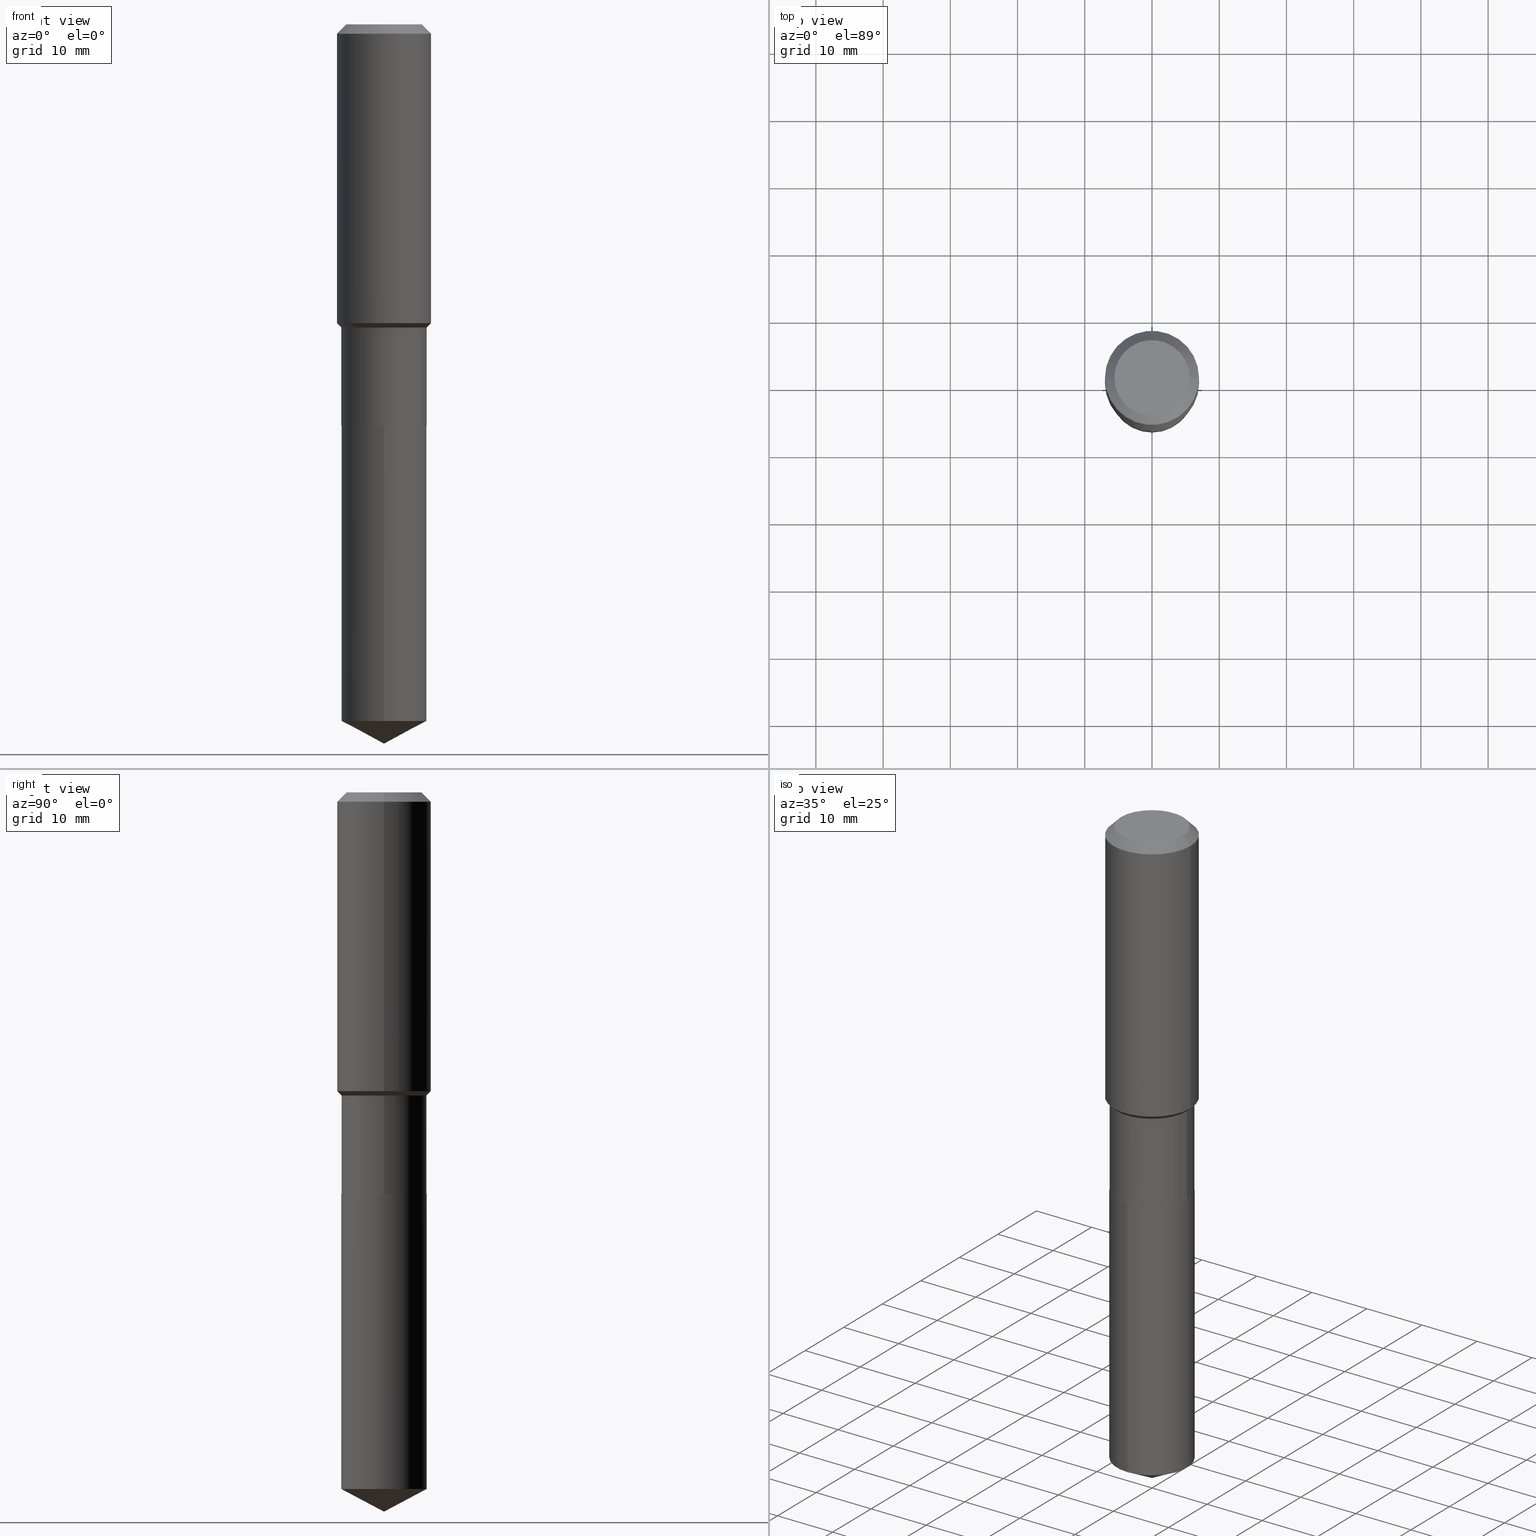
[diagram: canonical four-view strip — front | top / right | iso, engineering-drawing reading convention]
A machine part, canonical four-view strip (front | top / right | iso — engineering-drawing reading convention). The complete STEP part file that produces these views, byte-faithful:
ISO-10303-21;
HEADER;
FILE_DESCRIPTION (( 'STEP AP203' ),
    '1' );
FILE_NAME ('54728.STEP',
    '2024-04-24T15:38:43',
    ( '' ),
    ( '' ),
    'SwSTEP 2.0',
    'SolidWorks 2023',
    '' );
FILE_SCHEMA (( 'CONFIG_CONTROL_DESIGN' ));
ENDSEC;

DATA;
#1 = LINE ( 'NONE', #418, #408 ) ;
#2 = CIRCLE ( 'NONE', #460, 0.2494999999999999996 ) ;
#3 = DIRECTION ( 'NONE',  ( 1.000000000000000000, -6.982962677686269077E-15, 0.000000000000000000 ) ) ;
#4 = DIRECTION ( 'NONE',  ( 1.000000000000000000, -6.982962677686266711E-15, 4.876132675269083677E-29 ) ) ;
#5 = CYLINDRICAL_SURFACE ( 'NONE', #248, 0.2756000000000001227 ) ;
#6 = FACE_OUTER_BOUND ( 'NONE', #391, .T. ) ;
#7 = DIRECTION ( 'NONE',  ( -2.445468806185136597E-29, 3.491481338843145583E-15, 1.000000000000000000 ) ) ;
#8 = DIRECTION ( 'NONE',  ( -6.982962677686265922E-15, -1.000000000000000000, 4.370956789862821150E-15 ) ) ;
#9 = EDGE_LOOP ( 'NONE', ( #283, #389 ) ) ;
#10 = APPROVAL_PERSON_ORGANIZATION ( #402, #50, #173 ) ;
#11 = LINE ( 'NONE', #309, #295 ) ;
#12 = EDGE_CURVE ( 'NONE', #400, #174, #275, .T. ) ;
#13 = DIRECTION ( 'NONE',  ( -2.445468806185136877E-29, 3.491481338843145188E-15, 1.000000000000000000 ) ) ;
#14 = PERSON_AND_ORGANIZATION ( #481, #476 ) ;
#15 = DIMENSIONAL_EXPONENTS ( 1.000000000000000000, 0.000000000000000000, 0.000000000000000000, 0.000000000000000000, 0.000000000000000000, 0.000000000000000000, 0.000000000000000000 ) ;
#16 = APPROVAL_ROLE ( '' ) ;
#17 = AXIS2_PLACEMENT_3D ( 'NONE', #364, #19, #256 ) ;
#18 = EDGE_LOOP ( 'NONE', ( #409, #331, #230, #97 ) ) ;
#19 = DIRECTION ( 'NONE',  ( -2.445468806185136597E-29, 3.491481338843145583E-15, 1.000000000000000000 ) ) ;
#20 = ORIENTED_EDGE ( 'NONE', *, *, #426, .F. ) ;
#21 = DIRECTION ( 'NONE',  ( -2.445468806185136597E-29, 3.491481338843145583E-15, 1.000000000000000000 ) ) ;
#22 = DIRECTION ( 'NONE',  ( -2.445468806185136597E-29, 3.491481338843145583E-15, 1.000000000000000000 ) ) ;
#23 = EDGE_CURVE ( 'NONE', #155, #361, #398, .T. ) ;
#24 = ORIENTED_EDGE ( 'NONE', *, *, #378, .T. ) ;
#25 = DIRECTION ( 'NONE',  ( 1.000000000000000000, -6.982962677686269077E-15, 0.000000000000000000 ) ) ;
#26 = CIRCLE ( 'NONE', #449, 0.2500000000000000000 ) ;
#27 = ORIENTED_EDGE ( 'NONE', *, *, #23, .T. ) ;
#28 = PLANE ( 'NONE',  #196 ) ;
#29 = VERTEX_POINT ( 'NONE', #35 ) ;
#30 = EDGE_CURVE ( 'NONE', #215, #155, #235, .T. ) ;
#31 = CYLINDRICAL_SURFACE ( 'NONE', #160, 0.2500000000000000000 ) ;
#32 = DIRECTION ( 'NONE',  ( -6.982962677686265922E-15, -1.000000000000000000, 4.370956789862821150E-15 ) ) ;
#33 = PERSON_AND_ORGANIZATION_ROLE ( 'creator' ) ;
#34 = LOCAL_TIME ( 11, 38, 43.00000000000000000, #263 ) ;
#35 = CARTESIAN_POINT ( 'NONE',  ( -0.2494999999999999996, -6.430924385921369008E-15, -2.350400000000000045 ) ) ;
#36 = CC_DESIGN_DATE_AND_TIME_ASSIGNMENT ( #438, #100, ( #277 ) ) ;
#37 = CARTESIAN_POINT ( 'NONE',  ( 0.000000000000000000, 0.000000000000000000, 0.000000000000000000 ) ) ;
#38 = ADVANCED_FACE ( 'NONE', ( #488 ), #297, .T. ) ;
#39 = ORIENTED_EDGE ( 'NONE', *, *, #323, .T. ) ;
#40 = VERTEX_POINT ( 'NONE', #73 ) ;
#41 = CIRCLE ( 'NONE', #175, 0.2756000000000002337 ) ;
#42 = CARTESIAN_POINT ( 'NONE',  ( -0.2499999999999999167, -5.425347144164564958E-15, -1.775400000000000311 ) ) ;
#43 = PERSON_AND_ORGANIZATION ( #481, #476 ) ;
#44 = CARTESIAN_POINT ( 'NONE',  ( 5.747829882057545692E-29, -8.206377738816930564E-15, -2.350400000000000045 ) ) ;
#45 = CARTESIAN_POINT ( 'NONE',  ( 0.2494999999999999996, -9.948626926899652657E-15, -2.350400000000000045 ) ) ;
#46 = COORDINATED_UNIVERSAL_TIME_OFFSET ( 5, 0, .BEHIND. ) ;
#47 = FACE_OUTER_BOUND ( 'NONE', #61, .T. ) ;
#48 = ORIENTED_EDGE ( 'NONE', *, *, #393, .T. ) ;
#49 = DATE_TIME_ROLE ( 'creation_date' ) ;
#50 = APPROVAL ( #63, 'UNSPECIFIED' ) ;
#51 = CARTESIAN_POINT ( 'NONE',  ( -0.2494999999999999996, -6.433573613095479421E-15, -2.350400000000000045 ) ) ;
#52 = AXIS2_PLACEMENT_3D ( 'NONE', #419, #280, #351 ) ;
#53 = DIRECTION ( 'NONE',  ( -6.982962677686265922E-15, -1.000000000000000000, 3.278217592397115862E-15 ) ) ;
#54 = ADVANCED_FACE ( 'NONE', ( #110 ), #84, .T. ) ;
#55 = ADVANCED_FACE ( 'NONE', ( #111 ), #343, .T. ) ;
#56 = VERTEX_POINT ( 'NONE', #227 ) ;
#57 = CIRCLE ( 'NONE', #246, 0.2204800000000000093 ) ;
#58 = LINE ( 'NONE', #480, #259 ) ;
#59 = PERSON_AND_ORGANIZATION ( #481, #476 ) ;
#60 = AXIS2_PLACEMENT_3D ( 'NONE', #357, #122, #8 ) ;
#61 = EDGE_LOOP ( 'NONE', ( #209, #405, #345, #479 ) ) ;
#62 = CYLINDRICAL_SURFACE ( 'NONE', #87, 0.2499999999999999722 ) ;
#63 = APPROVAL_STATUS ( 'not_yet_approved' ) ;
#64 = EDGE_LOOP ( 'NONE', ( #39, #48 ) ) ;
#65 = DIRECTION ( 'NONE',  ( 1.000000000000000000, -6.982962677686269077E-15, 0.000000000000000000 ) ) ;
#66 = ORIENTED_EDGE ( 'NONE', *, *, #347, .T. ) ;
#67 = DIRECTION ( 'NONE',  ( -1.000000000000000000, 6.982962677686269077E-15, 0.000000000000000000 ) ) ;
#68 = COORDINATED_UNIVERSAL_TIME_OFFSET ( 5, 0, .BEHIND. ) ;
#69 = VECTOR ( 'NONE', #489, 39.37007874015748143 ) ;
#70 = ORIENTED_EDGE ( 'NONE', *, *, #339, .T. ) ;
#71 = DIRECTION ( 'NONE',  ( -2.445468806185136597E-29, 3.491481338843145583E-15, 1.000000000000000000 ) ) ;
#72 = CALENDAR_DATE ( 2024, 24, 4 ) ;
#73 = CARTESIAN_POINT ( 'NONE',  ( 0.2494999999999999996, -9.948626926899652657E-15, -2.350400000000000045 ) ) ;
#74 = APPROVAL_ROLE ( '' ) ;
#75 = CARTESIAN_POINT ( 'NONE',  ( 1.030189478474835746E-28, -1.470805418710330559E-14, -4.212600000000000122 ) ) ;
#76 = COORDINATED_UNIVERSAL_TIME_OFFSET ( 5, 0, .BEHIND. ) ;
#77 = AXIS2_PLACEMENT_3D ( 'NONE', #262, #453, #454 ) ;
#78 = CONICAL_SURFACE ( 'NONE', #128, 74.04434902938325536, 1.082104136236484937 ) ;
#79 = ORIENTED_EDGE ( 'NONE', *, *, #451, .F. ) ;
#80 = EDGE_CURVE ( 'NONE', #144, #56, #57, .T. ) ;
#81 = DIRECTION ( 'NONE',  ( -6.982962677686266711E-15, -1.000000000000000000, 3.541896320645574279E-15 ) ) ;
#82 = FACE_OUTER_BOUND ( 'NONE', #9, .T. ) ;
#83 = DIRECTION ( 'NONE',  ( -0.7071067811868130271, 7.493145998871311837E-15, 0.7071067811862817853 ) ) ;
#84 = CONICAL_SURFACE ( 'NONE', #485, 0.2756000000000000116, 0.7853981633974452814 ) ;
#85 = ADVANCED_FACE ( 'NONE', ( #82 ), #113, .F. ) ;
#86 = LINE ( 'NONE', #420, #355 ) ;
#87 = AXIS2_PLACEMENT_3D ( 'NONE', #404, #96, #366 ) ;
#88 = PRODUCT_DEFINITION_FORMATION_WITH_SPECIFIED_SOURCE ( 'ANY', '', #229, .NOT_KNOWN. ) ;
#89 = DIRECTION ( 'NONE',  ( -2.445468806185136877E-29, 3.491481338843145188E-15, 1.000000000000000000 ) ) ;
#90 = CARTESIAN_POINT ( 'NONE',  ( 5.747829882057545692E-29, -8.206377738816930564E-15, -2.350400000000000045 ) ) ;
#91 = ORIENTED_EDGE ( 'NONE', *, *, #299, .T. ) ;
#92 = LINE ( 'NONE', #51, #399 ) ;
#93 = VECTOR ( 'NONE', #467, 39.37007874015748854 ) ;
#94 = CARTESIAN_POINT ( 'NONE',  ( -1.745740669421508894E-15, -0.2500000000000082157, -2.350399999999999157 ) ) ;
#95 = APPROVAL_DATE_TIME ( #466, #435 ) ;
#96 = DIRECTION ( 'NONE',  ( -2.445468806185136597E-29, 3.491481338843145583E-15, 1.000000000000000000 ) ) ;
#97 = ORIENTED_EDGE ( 'NONE', *, *, #204, .F. ) ;
#98 = AXIS2_PLACEMENT_3D ( 'NONE', #250, #260, #67 ) ;
#99 = CARTESIAN_POINT ( 'NONE',  ( 5.747829882057545692E-29, -8.206377738816930564E-15, -2.350400000000000045 ) ) ;
#100 = DATE_TIME_ROLE ( 'classification_date' ) ;
#101 = ORIENTED_EDGE ( 'NONE', *, *, #166, .F. ) ;
#102 = DIRECTION ( 'NONE',  ( -2.445495345107905207E-29, 3.491443333595239081E-15, 1.000000000000000000 ) ) ;
#103 = ORIENTED_EDGE ( 'NONE', *, *, #484, .T. ) ;
#104 = DIRECTION ( 'NONE',  ( -2.445468806185136597E-29, 3.491481338843145583E-15, 1.000000000000000000 ) ) ;
#105 = ORIENTED_EDGE ( 'NONE', *, *, #428, .T. ) ;
#106 = DIRECTION ( 'NONE',  ( -6.165590087286828929E-15, -0.8829475928589255451, 0.4694715627858933038 ) ) ;
#107 = EDGE_CURVE ( 'NONE', #144, #174, #306, .T. ) ;
#108 = VECTOR ( 'NONE', #89, 39.37007874015748143 ) ;
#109 = LOCAL_TIME ( 11, 38, 43.00000000000000000, #68 ) ;
#110 = FACE_OUTER_BOUND ( 'NONE', #365, .T. ) ;
#111 = FACE_OUTER_BOUND ( 'NONE', #329, .T. ) ;
#112 = DIRECTION ( 'NONE',  ( 0.000000000000000000, 0.000000000000000000, 1.000000000000000000 ) ) ;
#113 = PLANE ( 'NONE',  #164 ) ;
#114 = EDGE_CURVE ( 'NONE', #159, #320, #1, .T. ) ;
#115 = APPROVAL_DATE_TIME ( #193, #50 ) ;
#116 = AXIS2_PLACEMENT_3D ( 'NONE', #138, #410, #483 ) ;
#117 = LENGTH_MEASURE_WITH_UNIT ( LENGTH_MEASURE( 0.02539999999999999897 ), #264 );
#118 = APPROVAL_PERSON_ORGANIZATION ( #348, #243, #74 ) ;
#119 = CARTESIAN_POINT ( 'NONE',  ( 1.776356839400350256E-15, 0.2499999999999918121, -2.350400000000000933 ) ) ;
#120 =( CONVERSION_BASED_UNIT ( 'INCH', #117 ) LENGTH_UNIT ( ) NAMED_UNIT ( #15 ) );
#121 = FACE_OUTER_BOUND ( 'NONE', #137, .T. ) ;
#122 = DIRECTION ( 'NONE',  ( -2.445495345107905207E-29, 3.491443333595239081E-15, 1.000000000000000000 ) ) ;
#123 = PERSON_AND_ORGANIZATION_ROLE ( 'design_owner' ) ;
#124 = APPLICATION_PROTOCOL_DEFINITION ( 'international standard', 'config_control_design', 1994, #442 ) ;
#125 = CARTESIAN_POINT ( 'NONE',  ( 4.341685318501092485E-29, -6.198775968982121785E-15, -1.775400000000000311 ) ) ;
#126 = DIRECTION ( 'NONE',  ( -2.445468806185136597E-29, 3.491481338843145583E-15, 1.000000000000000000 ) ) ;
#127 = AXIS2_PLACEMENT_3D ( 'NONE', #429, #307, #465 ) ;
#128 = AXIS2_PLACEMENT_3D ( 'NONE', #130, #279, #458 ) ;
#129 = LINE ( 'NONE', #423, #431 ) ;
#130 = CARTESIAN_POINT ( 'NONE',  ( -8.597751298186933089E-28, 1.227502554458045006E-13, 35.15747874015747954 ) ) ;
#131 = EDGE_CURVE ( 'NONE', #40, #29, #368, .T. ) ;
#132 = PERSON_AND_ORGANIZATION ( #481, #476 ) ;
#133 = AXIS2_PLACEMENT_3D ( 'NONE', #300, #342, #81 ) ;
#134 = CIRCLE ( 'NONE', #77, 0.2500000000000000000 ) ;
#135 = CIRCLE ( 'NONE', #52, 0.2499999999999999167 ) ;
#136 = EDGE_CURVE ( 'NONE', #217, #278, #134, .T. ) ;
#137 = EDGE_LOOP ( 'NONE', ( #20, #27, #403, #284 ) ) ;
#138 = CARTESIAN_POINT ( 'NONE',  ( 1.347942405969256063E-30, -1.924504513970354330E-16, -0.05512000000000035621 ) ) ;
#139 = MANIFOLD_SOLID_BREP ( 'Body-Move/Copy2[1]', #205 ) ;
#140 = VERTEX_POINT ( 'NONE', #119 ) ;
#141 = FACE_OUTER_BOUND ( 'NONE', #171, .T. ) ;
#142 = ORIENTED_EDGE ( 'NONE', *, *, #426, .T. ) ;
#143 = DIRECTION ( 'NONE',  ( -6.982962677686265922E-15, -1.000000000000000000, 3.278217592397115862E-15 ) ) ;
#144 = VERTEX_POINT ( 'NONE', #268 ) ;
#145 = DIRECTION ( 'NONE',  ( -1.000000000000000000, 6.982962677686265922E-15, -4.876176775795935793E-29 ) ) ;
#146 = ADVANCED_FACE ( 'NONE', ( #121 ), #271, .T. ) ;
#147 = EDGE_LOOP ( 'NONE', ( #79, #91, #233, #477 ) ) ;
#148 = CARTESIAN_POINT ( 'NONE',  ( 0.2500000000000000000, -9.950372667569074950E-15, -2.349900000000000322 ) ) ;
#149 = DIRECTION ( 'NONE',  ( 1.000000000000000000, -6.982962677686267499E-15, 4.876176775795935793E-29 ) ) ;
#150 = CARTESIAN_POINT ( 'NONE',  ( 5.747829882057544571E-29, -8.206377738816928987E-15, -2.350400000000000045 ) ) ;
#151 = CARTESIAN_POINT ( 'NONE',  ( 1.347942405969256063E-30, -1.924504513970354330E-16, -0.05512000000000035621 ) ) ;
#152 = AXIS2_PLACEMENT_3D ( 'NONE', #478, #21, #65 ) ;
#153 = ORIENTED_EDGE ( 'NONE', *, *, #12, .T. ) ;
#154 = MECHANICAL_CONTEXT ( 'NONE', #442, 'mechanical' ) ;
#155 = VERTEX_POINT ( 'NONE', #349 ) ;
#156 = CC_DESIGN_PERSON_AND_ORGANIZATION_ASSIGNMENT ( #375, #33, ( #197 ) ) ;
#157 = CARTESIAN_POINT ( 'NONE',  ( 0.000000000000000000, 0.000000000000000000, 0.000000000000000000 ) ) ;
#158 = CARTESIAN_POINT ( 'NONE',  ( 0.2499999999999999167, -7.944516638403687674E-15, -1.775400000000000311 ) ) ;
#159 = VERTEX_POINT ( 'NONE', #158 ) ;
#160 = AXIS2_PLACEMENT_3D ( 'NONE', #362, #474, #184 ) ;
#161 = APPLICATION_CONTEXT ( 'configuration controlled 3d designs of mechanical parts and assemblies' ) ;
#162 = ADVANCED_FACE ( 'NONE', ( #6 ), #311, .T. ) ;
#163 = ORIENTED_EDGE ( 'NONE', *, *, #80, .F. ) ;
#164 = AXIS2_PLACEMENT_3D ( 'NONE', #374, #265, #236 ) ;
#165 = UNCERTAINTY_MEASURE_WITH_UNIT (LENGTH_MEASURE( 1.000000000000000082E-05 ), #120, 'distance_accuracy_value', 'NONE');
#166 = EDGE_CURVE ( 'NONE', #278, #159, #86, .T. ) ;
#167 = CARTESIAN_POINT ( 'NONE',  ( 0.000000000000000000, 0.000000000000000000, 0.000000000000000000 ) ) ;
#168 = EDGE_LOOP ( 'NONE', ( #183, #473, #447 ) ) ;
#169 = FACE_OUTER_BOUND ( 'NONE', #147, .T. ) ;
#170 = ADVANCED_FACE ( 'NONE', ( #397 ), #28, .F. ) ;
#171 = EDGE_LOOP ( 'NONE', ( #288, #220, #482, #396 ) ) ;
#172 = CARTESIAN_POINT ( 'NONE',  ( 5.747829882057545692E-29, -8.206377738816930564E-15, -2.350400000000000045 ) ) ;
#173 = APPROVAL_ROLE ( '' ) ;
#174 = VERTEX_POINT ( 'NONE', #370 ) ;
#175 = AXIS2_PLACEMENT_3D ( 'NONE', #445, #22, #231 ) ;
#176 = FACE_OUTER_BOUND ( 'NONE', #293, .T. ) ;
#177 = CC_DESIGN_APPROVAL ( #243, ( #197 ) ) ;
#178 = EDGE_CURVE ( 'NONE', #340, #471, #181, .T. ) ;
#179 = EDGE_CURVE ( 'NONE', #215, #361, #58, .T. ) ;
#180 = ORIENTED_EDGE ( 'NONE', *, *, #371, .F. ) ;
#181 = LINE ( 'NONE', #245, #470 ) ;
#182 = PERSON_AND_ORGANIZATION ( #481, #476 ) ;
#183 = ORIENTED_EDGE ( 'NONE', *, *, #30, .F. ) ;
#184 = DIRECTION ( 'NONE',  ( -6.982962677686265922E-15, -1.000000000000000000, 3.278217592397115862E-15 ) ) ;
#185 = EDGE_LOOP ( 'NONE', ( #66, #70, #411, #101 ) ) ;
#186 = AXIS2_PLACEMENT_3D ( 'NONE', #287, #104, #321 ) ;
#187 = CIRCLE ( 'NONE', #385, 0.2500000000000000000 ) ;
#188 = CALENDAR_DATE ( 2024, 24, 4 ) ;
#189 = CC_DESIGN_APPROVAL ( #50, ( #277 ) ) ;
#190 = DIRECTION ( 'NONE',  ( -2.445468806185136597E-29, 3.491481338843145583E-15, 1.000000000000000000 ) ) ;
#191 = DIRECTION ( 'NONE',  ( 1.000000000000000000, 0.000000000000000000, 0.000000000000000000 ) ) ;
#192 = DIRECTION ( 'NONE',  ( 2.445468806185136597E-29, -3.491481338843145583E-15, -1.000000000000000000 ) ) ;
#193 = DATE_AND_TIME ( #341, #34 ) ;
#194 = ADVANCED_FACE ( 'NONE', ( #176 ), #422, .T. ) ;
#195 = DIRECTION ( 'NONE',  ( -2.445495345107905207E-29, 3.491443333595239081E-15, 1.000000000000000000 ) ) ;
#196 = AXIS2_PLACEMENT_3D ( 'NONE', #332, #448, #145 ) ;
#197 = PRODUCT_DEFINITION ( 'UNKNOWN', '', #88, #282 ) ;
#198 = CARTESIAN_POINT ( 'NONE',  ( 9.976758078697957252E-29, -1.424403517699194114E-14, -4.079672642084631207 ) ) ;
#199 = DIRECTION ( 'NONE',  ( -2.445495345107904926E-29, 3.491443333595239081E-15, 1.000000000000000000 ) ) ;
#200 = DIRECTION ( 'NONE',  ( -2.445495345107905207E-29, 3.491443333595239081E-15, 1.000000000000000000 ) ) ;
#201 = DIRECTION ( 'NONE',  ( 1.000000000000000000, -6.982962677686266711E-15, 0.000000000000000000 ) ) ;
#202 = CALENDAR_DATE ( 2024, 24, 4 ) ;
#203 = COORDINATED_UNIVERSAL_TIME_OFFSET ( 5, 0, .BEHIND. ) ;
#204 = EDGE_CURVE ( 'NONE', #174, #400, #247, .T. ) ;
#205 = CLOSED_SHELL ( 'NONE', ( #269, #55, #444, #146, #254 ) ) ;
#206 = AXIS2_PLACEMENT_3D ( 'NONE', #472, #71, #218 ) ;
#207 = LINE ( 'NONE', #242, #296 ) ;
#208 = CARTESIAN_POINT ( 'NONE',  ( 0.2756000000000000116, -2.116954965367370658E-15, -0.05512000000000035621 ) ) ;
#209 = ORIENTED_EDGE ( 'NONE', *, *, #433, .T. ) ;
#210 = ADVANCED_FACE ( 'NONE', ( #169 ), #221, .T. ) ;
#211 = CC_DESIGN_DATE_AND_TIME_ASSIGNMENT ( #352, #49, ( #197 ) ) ;
#212 = AXIS2_PLACEMENT_3D ( 'NONE', #222, #441, #25 ) ;
#213 = ORIENTED_EDGE ( 'NONE', *, *, #80, .T. ) ;
#214 = DIRECTION ( 'NONE',  ( 1.000000000000000000, -6.982962677686269077E-15, 0.000000000000000000 ) ) ;
#215 = VERTEX_POINT ( 'NONE', #289 ) ;
#216 = PLANE ( 'NONE',  #475 ) ;
#217 = VERTEX_POINT ( 'NONE', #401 ) ;
#218 = DIRECTION ( 'NONE',  ( 1.000000000000000000, -6.982962677686267499E-15, 0.000000000000000000 ) ) ;
#219 = ADVANCED_FACE ( 'NONE', ( #253 ), #330, .T. ) ;
#220 = ORIENTED_EDGE ( 'NONE', *, *, #451, .T. ) ;
#221 = CONICAL_SURFACE ( 'NONE', #152, 0.2494999999999999996, 0.7853981633978239785 ) ;
#222 = CARTESIAN_POINT ( 'NONE',  ( 5.747829882057544571E-29, -8.206377738816928987E-15, -2.350400000000000045 ) ) ;
#223 = CIRCLE ( 'NONE', #432, 0.2499999999999999167 ) ;
#224 = ADVANCED_BREP_SHAPE_REPRESENTATION ( '54728', ( #139, #468, #386 ), #267 ) ;
#225 = ORIENTED_EDGE ( 'NONE', *, *, #114, .T. ) ;
#226 = DIRECTION ( 'NONE',  ( 2.445495345107904926E-29, -3.491443333595239081E-15, -1.000000000000000000 ) ) ;
#227 = CARTESIAN_POINT ( 'NONE',  ( 0.2204800000000000093, -1.797903149065768707E-15, 3.860086710924123164E-18 ) ) ;
#228 = DATE_AND_TIME ( #188, #394 ) ;
#229 = PRODUCT ( '54728', '54728', '', ( #154 ) ) ;
#230 = ORIENTED_EDGE ( 'NONE', *, *, #446, .T. ) ;
#231 = DIRECTION ( 'NONE',  ( 1.000000000000000000, -6.982962677686267499E-15, 0.000000000000000000 ) ) ;
#232 =( NAMED_UNIT ( * ) SI_UNIT ( $, .STERADIAN. ) SOLID_ANGLE_UNIT ( ) );
#233 = ORIENTED_EDGE ( 'NONE', *, *, #382, .T. ) ;
#234 = CC_DESIGN_PERSON_AND_ORGANIZATION_ASSIGNMENT ( #59, #407, ( #277 ) ) ;
#235 = LINE ( 'NONE', #75, #367 ) ;
#236 = DIRECTION ( 'NONE',  ( 1.000000000000000000, -6.982962677686265922E-15, 4.876176775795935793E-29 ) ) ;
#237 = DIRECTION ( 'NONE',  ( -2.445468806185136597E-29, 3.491481338843145583E-15, 1.000000000000000000 ) ) ;
#238 = DIRECTION ( 'NONE',  ( 1.000000000000000000, -6.982962677686269077E-15, 0.000000000000000000 ) ) ;
#239 = CARTESIAN_POINT ( 'NONE',  ( -0.2756000000000002337, -4.151138266952898691E-15, -1.749800000000000244 ) ) ;
#240 = EDGE_CURVE ( 'NONE', #320, #471, #377, .T. ) ;
#241 = CARTESIAN_POINT ( 'NONE',  ( 5.746607147654452891E-29, -8.204631998147508272E-15, -2.349900000000000322 ) ) ;
#242 = CARTESIAN_POINT ( 'NONE',  ( -1.745740669421508894E-15, -0.2500000000000082157, -2.350399999999999157 ) ) ;
#243 = APPROVAL ( #308, 'UNSPECIFIED' ) ;
#244 = ORIENTED_EDGE ( 'NONE', *, *, #446, .F. ) ;
#245 = CARTESIAN_POINT ( 'NONE',  ( -0.2499999999999999167, -4.422419129581871321E-15, -1.775400000000000311 ) ) ;
#246 = AXIS2_PLACEMENT_3D ( 'NONE', #261, #337, #4 ) ;
#247 = CIRCLE ( 'NONE', #116, 0.2756000000000000116 ) ;
#248 = AXIS2_PLACEMENT_3D ( 'NONE', #157, #126, #421 ) ;
#249 = ORIENTED_EDGE ( 'NONE', *, *, #166, .T. ) ;
#250 = CARTESIAN_POINT ( 'NONE',  ( 1.347942405969256063E-30, -1.924504513970354330E-16, -0.05512000000000035621 ) ) ;
#251 = PERSON_AND_ORGANIZATION_ROLE ( 'design_supplier' ) ;
#252 = ORIENTED_EDGE ( 'NONE', *, *, #484, .F. ) ;
#253 = FACE_OUTER_BOUND ( 'NONE', #383, .T. ) ;
#254 = ADVANCED_FACE ( 'NONE', ( #406 ), #216, .F. ) ;
#255 = ORIENTED_EDGE ( 'NONE', *, *, #12, .F. ) ;
#256 = DIRECTION ( 'NONE',  ( 1.000000000000000000, -6.982962677686266711E-15, 4.876132675269083677E-29 ) ) ;
#257 = SECURITY_CLASSIFICATION_LEVEL ( 'unclassified' ) ;
#258 = EDGE_LOOP ( 'NONE', ( #213, #324 ) ) ;
#259 = VECTOR ( 'NONE', #106, 39.37007874015748143 ) ;
#260 = DIRECTION ( 'NONE',  ( 2.445468806185136597E-29, -3.491481338843145583E-15, -1.000000000000000000 ) ) ;
#261 = CARTESIAN_POINT ( 'NONE',  ( -9.439721640706190018E-47, 1.347742071746724849E-32, 3.860086710912454339E-18 ) ) ;
#262 = CARTESIAN_POINT ( 'NONE',  ( 5.746607147654452891E-29, -8.204631998147508272E-15, -2.349900000000000322 ) ) ;
#263 = COORDINATED_UNIVERSAL_TIME_OFFSET ( 5, 0, .BEHIND. ) ;
#264 =( LENGTH_UNIT ( ) NAMED_UNIT ( * ) SI_UNIT ( $, .METRE. ) );
#265 = DIRECTION ( 'NONE',  ( -2.438088387897960049E-29, 3.491481338843145188E-15, 1.000000000000000000 ) ) ;
#266 = CIRCLE ( 'NONE', #17, 0.2204800000000000093 ) ;
#267 =( GEOMETRIC_REPRESENTATION_CONTEXT ( 3 ) GLOBAL_UNCERTAINTY_ASSIGNED_CONTEXT ( ( #165 ) ) GLOBAL_UNIT_ASSIGNED_CONTEXT ( ( #120, #270, #232 ) ) REPRESENTATION_CONTEXT ( 'NONE', 'WORKASPACE' ) );
#268 = CARTESIAN_POINT ( 'NONE',  ( -0.2204800000000000093, 1.635828836874783961E-15, 3.860086710901350968E-18 ) ) ;
#269 = ADVANCED_FACE ( 'NONE', ( #373 ), #31, .T. ) ;
#270 =( NAMED_UNIT ( * ) PLANE_ANGLE_UNIT ( ) SI_UNIT ( $, .RADIAN. ) );
#271 = CYLINDRICAL_SURFACE ( 'NONE', #326, 0.2500000000000000000 ) ;
#272 = LINE ( 'NONE', #45, #93 ) ;
#273 = DIRECTION ( 'NONE',  ( -2.445468806185136597E-29, 3.491481338843145583E-15, 1.000000000000000000 ) ) ;
#274 = CARTESIAN_POINT ( 'NONE',  ( -1.745740669421466492E-15, -0.2500000000000141553, -4.079672642084629430 ) ) ;
#275 = CIRCLE ( 'NONE', #392, 0.2756000000000000116 ) ;
#276 = CIRCLE ( 'NONE', #60, 0.2500000000000000000 ) ;
#277 = SECURITY_CLASSIFICATION ( '', '', #257 ) ;
#278 = VERTEX_POINT ( 'NONE', #148 ) ;
#279 = DIRECTION ( 'NONE',  ( -2.445495345107905207E-29, 3.491443333595239081E-15, 1.000000000000000000 ) ) ;
#280 = DIRECTION ( 'NONE',  ( -2.445468806185136597E-29, 3.491481338843145583E-15, 1.000000000000000000 ) ) ;
#281 = CONICAL_SURFACE ( 'NONE', #212, 0.2494999999999999996, 0.7853981633978239785 ) ;
#282 = DESIGN_CONTEXT ( 'detailed design', #161, 'design' ) ;
#283 = ORIENTED_EDGE ( 'NONE', *, *, #131, .F. ) ;
#284 = ORIENTED_EDGE ( 'NONE', *, *, #393, .F. ) ;
#285 = CARTESIAN_POINT ( 'NONE',  ( 0.2756000000000002337, -8.033898560678073390E-15, -1.749800000000000244 ) ) ;
#286 = ORIENTED_EDGE ( 'NONE', *, *, #179, .F. ) ;
#287 = CARTESIAN_POINT ( 'NONE',  ( 0.000000000000000000, 0.000000000000000000, 0.000000000000000000 ) ) ;
#288 = ORIENTED_EDGE ( 'NONE', *, *, #131, .T. ) ;
#289 = CARTESIAN_POINT ( 'NONE',  ( 1.030189369080156183E-28, -1.470805418710330559E-14, -4.212600000000000122 ) ) ;
#290 = ORIENTED_EDGE ( 'NONE', *, *, #301, .F. ) ;
#291 = DIRECTION ( 'NONE',  ( -0.7071067811865497932, 7.493145998870362049E-15, 0.7071067811865451302 ) ) ;
#292 = ADVANCED_FACE ( 'NONE', ( #434 ), #62, .T. ) ;
#293 = EDGE_LOOP ( 'NONE', ( #180, #163, #327, #354 ) ) ;
#294 = AXIS2_PLACEMENT_3D ( 'NONE', #198, #195, #32 ) ;
#295 = VECTOR ( 'NONE', #358, 39.37007874015748143 ) ;
#296 = VECTOR ( 'NONE', #199, 39.37007874015748143 ) ;
#297 = CYLINDRICAL_SURFACE ( 'NONE', #459, 0.2756000000000001227 ) ;
#298 = DIRECTION ( 'NONE',  ( -1.000000000000000000, 6.982962677686269077E-15, 0.000000000000000000 ) ) ;
#299 = EDGE_CURVE ( 'NONE', #29, #40, #2, .T. ) ;
#300 = CARTESIAN_POINT ( 'NONE',  ( -8.597751298186933089E-28, 1.227502554458045006E-13, 35.15747874015747954 ) ) ;
#301 = EDGE_CURVE ( 'NONE', #56, #144, #266, .T. ) ;
#302 = CLOSED_SHELL ( 'NONE', ( #318, #54, #469, #417, #292, #219, #162, #38, #194, #170, #85, #210 ) ) ;
#303 = VECTOR ( 'NONE', #390, 39.37007874015748143 ) ;
#304 = APPLICATION_PROTOCOL_DEFINITION ( 'international standard', 'config_control_design', 1994, #161 ) ;
#305 = DIRECTION ( 'NONE',  ( 1.000000000000000000, -6.982962677686269077E-15, 0.000000000000000000 ) ) ;
#306 = LINE ( 'NONE', #452, #69 ) ;
#307 = DIRECTION ( 'NONE',  ( -2.445468806185136597E-29, 3.491481338843145583E-15, 1.000000000000000000 ) ) ;
#308 = APPROVAL_STATUS ( 'not_yet_approved' ) ;
#309 = CARTESIAN_POINT ( 'NONE',  ( 1.776356839400307657E-15, 0.2499999999999918121, -2.350400000000000933 ) ) ;
#310 = EDGE_LOOP ( 'NONE', ( #490, #105, #255, #244 ) ) ;
#311 = CONICAL_SURFACE ( 'NONE', #415, 0.2499999999999999167, 0.7853981633974516097 ) ;
#312 = APPROVAL_PERSON_ORGANIZATION ( #132, #435, #16 ) ;
#313 = DIRECTION ( 'NONE',  ( -2.445495345107905207E-29, 3.491443333595239081E-15, 1.000000000000000000 ) ) ;
#314 = CC_DESIGN_PERSON_AND_ORGANIZATION_ASSIGNMENT ( #182, #251, ( #88 ) ) ;
#315 = CARTESIAN_POINT ( 'NONE',  ( -0.2756000000000001227, 1.958255779754836984E-15, -1.355658510874252567E-29 ) ) ;
#316 = CC_DESIGN_PERSON_AND_ORGANIZATION_ASSIGNMENT ( #43, #123, ( #229 ) ) ;
#317 = EDGE_LOOP ( 'NONE', ( #24, #142, #369, #450 ) ) ;
#318 = ADVANCED_FACE ( 'NONE', ( #141 ), #281, .T. ) ;
#319 = PERSON_AND_ORGANIZATION_ROLE ( 'creator' ) ;
#320 = VERTEX_POINT ( 'NONE', #285 ) ;
#321 = DIRECTION ( 'NONE',  ( 1.000000000000000000, -6.982962677686266711E-15, 4.876176775795935793E-29 ) ) ;
#322 = LINE ( 'NONE', #395, #108 ) ;
#323 = EDGE_CURVE ( 'NONE', #436, #140, #26, .T. ) ;
#324 = ORIENTED_EDGE ( 'NONE', *, *, #301, .T. ) ;
#325 = DIRECTION ( 'NONE',  ( 6.982962677686265922E-15, 1.000000000000000000, -3.491443333595239081E-15 ) ) ;
#326 = AXIS2_PLACEMENT_3D ( 'NONE', #44, #200, #457 ) ;
#327 = ORIENTED_EDGE ( 'NONE', *, *, #107, .T. ) ;
#328 = CARTESIAN_POINT ( 'NONE',  ( 5.747829882057544571E-29, -8.206377738816928987E-15, -2.350400000000000045 ) ) ;
#329 = EDGE_LOOP ( 'NONE', ( #286, #380, #363 ) ) ;
#330 = CYLINDRICAL_SURFACE ( 'NONE', #186, 0.2499999999999999722 ) ;
#331 = ORIENTED_EDGE ( 'NONE', *, *, #333, .T. ) ;
#332 = CARTESIAN_POINT ( 'NONE',  ( -4.719860820353095009E-47, 6.738710358733624243E-33, 1.930043355456227170E-18 ) ) ;
#333 = EDGE_CURVE ( 'NONE', #471, #320, #41, .T. ) ;
#334 = PRODUCT_RELATED_PRODUCT_CATEGORY ( 'detail', '', ( #229 ) ) ;
#335 = DIRECTION ( 'NONE',  ( 1.000000000000000000, -6.982962677686265922E-15, 0.000000000000000000 ) ) ;
#336 = CIRCLE ( 'NONE', #486, 0.2500000000000000000 ) ;
#337 = DIRECTION ( 'NONE',  ( -2.445468806185136597E-29, 3.491481338843145583E-15, 1.000000000000000000 ) ) ;
#338 = PRODUCT_DEFINITION_SHAPE ( 'NONE', 'NONE',  #197 ) ;
#339 = EDGE_CURVE ( 'NONE', #217, #340, #322, .T. ) ;
#340 = VERTEX_POINT ( 'NONE', #42 ) ;
#341 = CALENDAR_DATE ( 2024, 24, 4 ) ;
#342 = DIRECTION ( 'NONE',  ( -2.445495345107905207E-29, 3.491443333595239081E-15, 1.000000000000000000 ) ) ;
#343 = CONICAL_SURFACE ( 'NONE', #133, 74.04434902938325536, 1.082104136236484937 ) ;
#344 = AXIS2_PLACEMENT_3D ( 'NONE', #150, #414, #305 ) ;
#345 = ORIENTED_EDGE ( 'NONE', *, *, #240, .F. ) ;
#346 = FACE_OUTER_BOUND ( 'NONE', #310, .T. ) ;
#347 = EDGE_CURVE ( 'NONE', #278, #217, #336, .T. ) ;
#348 = PERSON_AND_ORGANIZATION ( #481, #476 ) ;
#349 = CARTESIAN_POINT ( 'NONE',  ( 1.776356839400349467E-15, 0.2499999999999856781, -4.079672642084632095 ) ) ;
#350 = CC_DESIGN_PERSON_AND_ORGANIZATION_ASSIGNMENT ( #14, #319, ( #88 ) ) ;
#351 = DIRECTION ( 'NONE',  ( 1.000000000000000000, -6.982962677686269077E-15, 0.000000000000000000 ) ) ;
#352 = DATE_AND_TIME ( #202, #487 ) ;
#353 = DIRECTION ( 'NONE',  ( 0.7071067811865453523, -7.319954787623248157E-15, -0.7071067811865496822 ) ) ;
#354 = ORIENTED_EDGE ( 'NONE', *, *, #204, .T. ) ;
#355 = VECTOR ( 'NONE', #387, 39.37007874015748143 ) ;
#356 = LOCAL_TIME ( 11, 38, 43.00000000000000000, #203 ) ;
#357 = CARTESIAN_POINT ( 'NONE',  ( 9.976758078697957252E-29, -1.424403517699194114E-14, -4.079672642084631207 ) ) ;
#358 = DIRECTION ( 'NONE',  ( -2.445495345107904926E-29, 3.491443333595239081E-15, 1.000000000000000000 ) ) ;
#359 = ORIENTED_EDGE ( 'NONE', *, *, #333, .F. ) ;
#360 = CONICAL_SURFACE ( 'NONE', #127, 0.2499999999999999167, 0.7853981633974516097 ) ;
#361 = VERTEX_POINT ( 'NONE', #274 ) ;
#362 = CARTESIAN_POINT ( 'NONE',  ( 5.747829882057545692E-29, -8.206377738816930564E-15, -2.350400000000000045 ) ) ;
#363 = ORIENTED_EDGE ( 'NONE', *, *, #378, .F. ) ;
#364 = CARTESIAN_POINT ( 'NONE',  ( -9.439721640706190018E-47, 1.347742071746724849E-32, 3.860086710912454339E-18 ) ) ;
#365 = EDGE_LOOP ( 'NONE', ( #290, #372, #153, #376 ) ) ;
#366 = DIRECTION ( 'NONE',  ( 1.000000000000000000, -6.982962677686266711E-15, 4.876176775795935793E-29 ) ) ;
#367 = VECTOR ( 'NONE', #455, 39.37007874015747433 ) ;
#368 = CIRCLE ( 'NONE', #344, 0.2494999999999999996 ) ;
#369 = ORIENTED_EDGE ( 'NONE', *, *, #323, .F. ) ;
#370 = CARTESIAN_POINT ( 'NONE',  ( -0.2756000000000000116, -1.192666469297548903E-15, -0.05512000000000035621 ) ) ;
#371 = EDGE_CURVE ( 'NONE', #56, #400, #129, .T. ) ;
#372 = ORIENTED_EDGE ( 'NONE', *, *, #371, .T. ) ;
#373 = FACE_OUTER_BOUND ( 'NONE', #317, .T. ) ;
#374 = CARTESIAN_POINT ( 'NONE',  ( 7.544910167511496046E-29, -5.632856486589080252E-15, -2.350400000000000045 ) ) ;
#375 = PERSON_AND_ORGANIZATION ( #481, #476 ) ;
#376 = ORIENTED_EDGE ( 'NONE', *, *, #107, .F. ) ;
#377 = CIRCLE ( 'NONE', #206, 0.2756000000000002337 ) ;
#378 = EDGE_CURVE ( 'NONE', #361, #155, #276, .T. ) ;
#379 = APPROVAL_DATE_TIME ( #228, #243 ) ;
#380 = ORIENTED_EDGE ( 'NONE', *, *, #30, .T. ) ;
#381 = CARTESIAN_POINT ( 'NONE',  ( 1.347942405969256063E-30, -1.924504513970354330E-16, -0.05512000000000035621 ) ) ;
#382 = EDGE_CURVE ( 'NONE', #40, #278, #272, .T. ) ;
#383 = EDGE_LOOP ( 'NONE', ( #440, #424, #249, #252 ) ) ;
#384 = LINE ( 'NONE', #315, #462 ) ;
#385 = AXIS2_PLACEMENT_3D ( 'NONE', #90, #313, #53 ) ;
#386 = AXIS2_PLACEMENT_3D ( 'NONE', #167, #112, #191 ) ;
#387 = DIRECTION ( 'NONE',  ( -2.445468806185136877E-29, 3.491481338843145188E-15, 1.000000000000000000 ) ) ;
#388 = CARTESIAN_POINT ( 'NONE',  ( 4.341685318501092485E-29, -6.198775968982121785E-15, -1.775400000000000311 ) ) ;
#389 = ORIENTED_EDGE ( 'NONE', *, *, #299, .F. ) ;
#390 = DIRECTION ( 'NONE',  ( -2.445468806185136877E-29, 3.491481338843145188E-15, 1.000000000000000000 ) ) ;
#391 = EDGE_LOOP ( 'NONE', ( #443, #103, #225, #359 ) ) ;
#392 = AXIS2_PLACEMENT_3D ( 'NONE', #151, #412, #335 ) ;
#393 = EDGE_CURVE ( 'NONE', #140, #436, #187, .T. ) ;
#394 = LOCAL_TIME ( 11, 38, 43.00000000000000000, #76 ) ;
#395 = CARTESIAN_POINT ( 'NONE',  ( -0.2499999999999999722, 1.776356839400250267E-15, -1.229733772563726305E-29 ) ) ;
#396 = ORIENTED_EDGE ( 'NONE', *, *, #382, .F. ) ;
#397 = FACE_OUTER_BOUND ( 'NONE', #258, .T. ) ;
#398 = CIRCLE ( 'NONE', #294, 0.2500000000000000000 ) ;
#399 = VECTOR ( 'NONE', #83, 39.37007874015748854 ) ;
#400 = VERTEX_POINT ( 'NONE', #208 ) ;
#401 = CARTESIAN_POINT ( 'NONE',  ( -0.2500000000000000555, -5.425347144164564170E-15, -2.349900000000000322 ) ) ;
#402 = PERSON_AND_ORGANIZATION ( #481, #476 ) ;
#403 = ORIENTED_EDGE ( 'NONE', *, *, #464, .T. ) ;
#404 = CARTESIAN_POINT ( 'NONE',  ( 0.000000000000000000, 0.000000000000000000, 0.000000000000000000 ) ) ;
#405 = ORIENTED_EDGE ( 'NONE', *, *, #178, .T. ) ;
#406 = FACE_OUTER_BOUND ( 'NONE', #64, .T. ) ;
#407 = PERSON_AND_ORGANIZATION_ROLE ( 'classification_officer' ) ;
#408 = VECTOR ( 'NONE', #416, 39.37007874015748854 ) ;
#409 = ORIENTED_EDGE ( 'NONE', *, *, #428, .F. ) ;
#410 = DIRECTION ( 'NONE',  ( -2.445468806185136597E-29, 3.491481338843145583E-15, 1.000000000000000000 ) ) ;
#411 = ORIENTED_EDGE ( 'NONE', *, *, #433, .F. ) ;
#412 = DIRECTION ( 'NONE',  ( -2.445468806185136597E-29, 3.491481338843145583E-15, 1.000000000000000000 ) ) ;
#413 = SHAPE_DEFINITION_REPRESENTATION ( #338, #224 ) ;
#414 = DIRECTION ( 'NONE',  ( -2.445468806185136597E-29, 3.491481338843145583E-15, 1.000000000000000000 ) ) ;
#415 = AXIS2_PLACEMENT_3D ( 'NONE', #125, #273, #238 ) ;
#416 = DIRECTION ( 'NONE',  ( 0.7071067811865497932, -2.468850131082280332E-15, 0.7071067811865451302 ) ) ;
#417 = ADVANCED_FACE ( 'NONE', ( #47 ), #360, .T. ) ;
#418 = CARTESIAN_POINT ( 'NONE',  ( 0.2499999999999999167, -7.944516638403687674E-15, -1.775400000000000311 ) ) ;
#419 = CARTESIAN_POINT ( 'NONE',  ( 4.341685318501092485E-29, -6.198775968982121785E-15, -1.775400000000000311 ) ) ;
#420 = CARTESIAN_POINT ( 'NONE',  ( 0.2499999999999999722, -1.745740669421566480E-15, 1.219044193948983808E-29 ) ) ;
#421 = DIRECTION ( 'NONE',  ( 1.000000000000000000, -6.982962677686267499E-15, 4.876176775795935793E-29 ) ) ;
#422 = CONICAL_SURFACE ( 'NONE', #98, 0.2756000000000000116, 0.7853981633974452814 ) ;
#423 = CARTESIAN_POINT ( 'NONE',  ( 0.2756000000000000116, -2.083203699582869812E-15, -0.05512000000000035621 ) ) ;
#424 = ORIENTED_EDGE ( 'NONE', *, *, #136, .T. ) ;
#425 = CALENDAR_DATE ( 2024, 24, 4 ) ;
#426 = EDGE_CURVE ( 'NONE', #155, #140, #11, .T. ) ;
#427 = LINE ( 'NONE', #456, #303 ) ;
#428 = EDGE_CURVE ( 'NONE', #471, #174, #384, .T. ) ;
#429 = CARTESIAN_POINT ( 'NONE',  ( 4.341685318501092485E-29, -6.198775968982121785E-15, -1.775400000000000311 ) ) ;
#430 = APPROVAL_STATUS ( 'not_yet_approved' ) ;
#431 = VECTOR ( 'NONE', #353, 39.37007874015748143 ) ;
#432 = AXIS2_PLACEMENT_3D ( 'NONE', #388, #7, #3 ) ;
#433 = EDGE_CURVE ( 'NONE', #159, #340, #135, .T. ) ;
#434 = FACE_OUTER_BOUND ( 'NONE', #185, .T. ) ;
#435 = APPROVAL ( #430, 'UNSPECIFIED' ) ;
#436 = VERTEX_POINT ( 'NONE', #94 ) ;
#437 = DIRECTION ( 'NONE',  ( -2.445468806185136597E-29, 3.491481338843145583E-15, 1.000000000000000000 ) ) ;
#438 = DATE_AND_TIME ( #72, #109 ) ;
#439 = CC_DESIGN_SECURITY_CLASSIFICATION ( #277, ( #88 ) ) ;
#440 = ORIENTED_EDGE ( 'NONE', *, *, #339, .F. ) ;
#441 = DIRECTION ( 'NONE',  ( -2.445468806185136597E-29, 3.491481338843145583E-15, 1.000000000000000000 ) ) ;
#442 = APPLICATION_CONTEXT ( 'configuration controlled 3d designs of mechanical parts and assemblies' ) ;
#443 = ORIENTED_EDGE ( 'NONE', *, *, #178, .F. ) ;
#444 = ADVANCED_FACE ( 'NONE', ( #461 ), #78, .T. ) ;
#445 = CARTESIAN_POINT ( 'NONE',  ( 4.279081317062752596E-29, -6.109394046707736858E-15, -1.749800000000000244 ) ) ;
#446 = EDGE_CURVE ( 'NONE', #320, #400, #427, .T. ) ;
#447 = ORIENTED_EDGE ( 'NONE', *, *, #23, .F. ) ;
#448 = DIRECTION ( 'NONE',  ( 2.438088387897960049E-29, -3.491481338843145188E-15, -1.000000000000000000 ) ) ;
#449 = AXIS2_PLACEMENT_3D ( 'NONE', #99, #102, #143 ) ;
#450 = ORIENTED_EDGE ( 'NONE', *, *, #464, .F. ) ;
#451 = EDGE_CURVE ( 'NONE', #29, #217, #92, .T. ) ;
#452 = CARTESIAN_POINT ( 'NONE',  ( -0.2756000000000000116, 1.732054062573300039E-15, -0.05512000000000035621 ) ) ;
#453 = DIRECTION ( 'NONE',  ( -2.445468806185136597E-29, 3.491481338843145583E-15, 1.000000000000000000 ) ) ;
#454 = DIRECTION ( 'NONE',  ( 1.000000000000000000, -6.982962677686266711E-15, 0.000000000000000000 ) ) ;
#455 = DIRECTION ( 'NONE',  ( 6.273719981627760554E-15, 0.8829475928589289868, 0.4694715627858871976 ) ) ;
#456 = CARTESIAN_POINT ( 'NONE',  ( 0.2756000000000001227, -1.924504513970336137E-15, 1.343874319409360548E-29 ) ) ;
#457 = DIRECTION ( 'NONE',  ( -6.982962677686265922E-15, -1.000000000000000000, 3.278217592397115862E-15 ) ) ;
#458 = DIRECTION ( 'NONE',  ( -6.982962677686266711E-15, -1.000000000000000000, 3.541896320645574279E-15 ) ) ;
#459 = AXIS2_PLACEMENT_3D ( 'NONE', #37, #190, #149 ) ;
#460 = AXIS2_PLACEMENT_3D ( 'NONE', #328, #437, #214 ) ;
#461 = FACE_OUTER_BOUND ( 'NONE', #168, .T. ) ;
#462 = VECTOR ( 'NONE', #13, 39.37007874015748143 ) ;
#463 = CC_DESIGN_APPROVAL ( #435, ( #88 ) ) ;
#464 = EDGE_CURVE ( 'NONE', #361, #436, #207, .T. ) ;
#465 = DIRECTION ( 'NONE',  ( 1.000000000000000000, -6.982962677686269077E-15, 0.000000000000000000 ) ) ;
#466 = DATE_AND_TIME ( #425, #356 ) ;
#467 = DIRECTION ( 'NONE',  ( 0.7071067811868130271, -2.468850131085038979E-15, 0.7071067811862817853 ) ) ;
#468 = MANIFOLD_SOLID_BREP ( 'Body-Move/Copy2[2]', #302 ) ;
#469 = ADVANCED_FACE ( 'NONE', ( #346 ), #5, .T. ) ;
#470 = VECTOR ( 'NONE', #291, 39.37007874015748854 ) ;
#471 = VERTEX_POINT ( 'NONE', #239 ) ;
#472 = CARTESIAN_POINT ( 'NONE',  ( 4.279081317062752596E-29, -6.109394046707736858E-15, -1.749800000000000244 ) ) ;
#473 = ORIENTED_EDGE ( 'NONE', *, *, #179, .T. ) ;
#474 = DIRECTION ( 'NONE',  ( -2.445495345107905207E-29, 3.491443333595239081E-15, 1.000000000000000000 ) ) ;
#475 = AXIS2_PLACEMENT_3D ( 'NONE', #172, #226, #325 ) ;
#476 = ORGANIZATION ( 'UNSPECIFIED', 'UNSPECIFIED', '' ) ;
#477 = ORIENTED_EDGE ( 'NONE', *, *, #136, .F. ) ;
#478 = CARTESIAN_POINT ( 'NONE',  ( 5.747829882057544571E-29, -8.206377738816928987E-15, -2.350400000000000045 ) ) ;
#479 = ORIENTED_EDGE ( 'NONE', *, *, #114, .F. ) ;
#480 = CARTESIAN_POINT ( 'NONE',  ( 1.030176893663341263E-28, -1.470823284217266242E-14, -4.212600000000000122 ) ) ;
#481 = PERSON ( 'UNSPECIFIED', 'UNSPECIFIED', 'UNSPECIFIED', ('UNSPECIFIED'), ('UNSPECIFIED'), ('UNSPECIFIED') ) ;
#482 = ORIENTED_EDGE ( 'NONE', *, *, #347, .F. ) ;
#483 = DIRECTION ( 'NONE',  ( 1.000000000000000000, -6.982962677686265922E-15, 0.000000000000000000 ) ) ;
#484 = EDGE_CURVE ( 'NONE', #340, #159, #223, .T. ) ;
#485 = AXIS2_PLACEMENT_3D ( 'NONE', #381, #192, #298 ) ;
#486 = AXIS2_PLACEMENT_3D ( 'NONE', #241, #237, #201 ) ;
#487 = LOCAL_TIME ( 11, 38, 43.00000000000000000, #46 ) ;
#488 = FACE_OUTER_BOUND ( 'NONE', #18, .T. ) ;
#489 = DIRECTION ( 'NONE',  ( -0.7071067811865453523, 2.468850131082234184E-15, -0.7071067811865496822 ) ) ;
#490 = ORIENTED_EDGE ( 'NONE', *, *, #240, .T. ) ;
ENDSEC;
END-ISO-10303-21;
